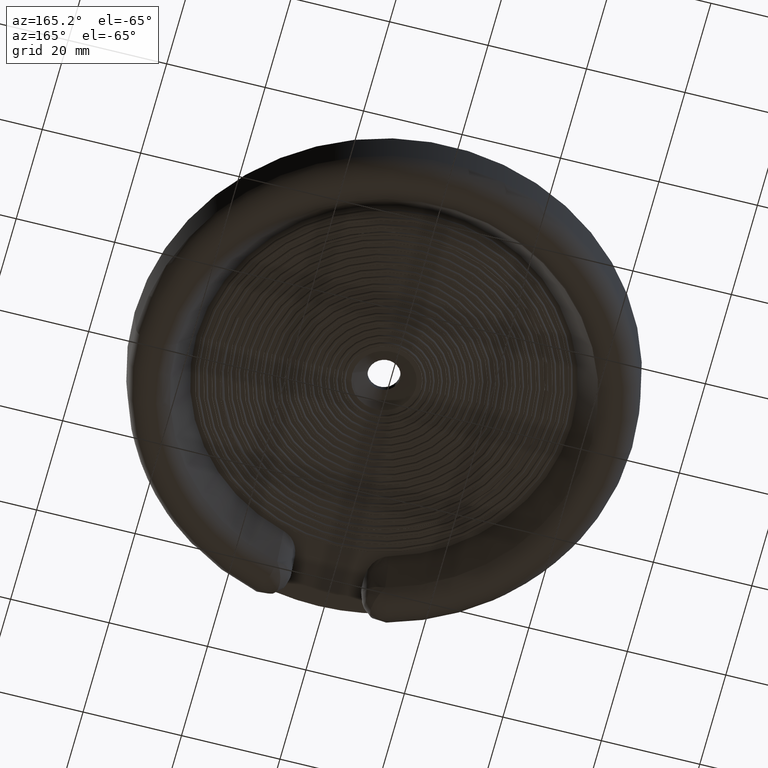
[diagram: clean part render]
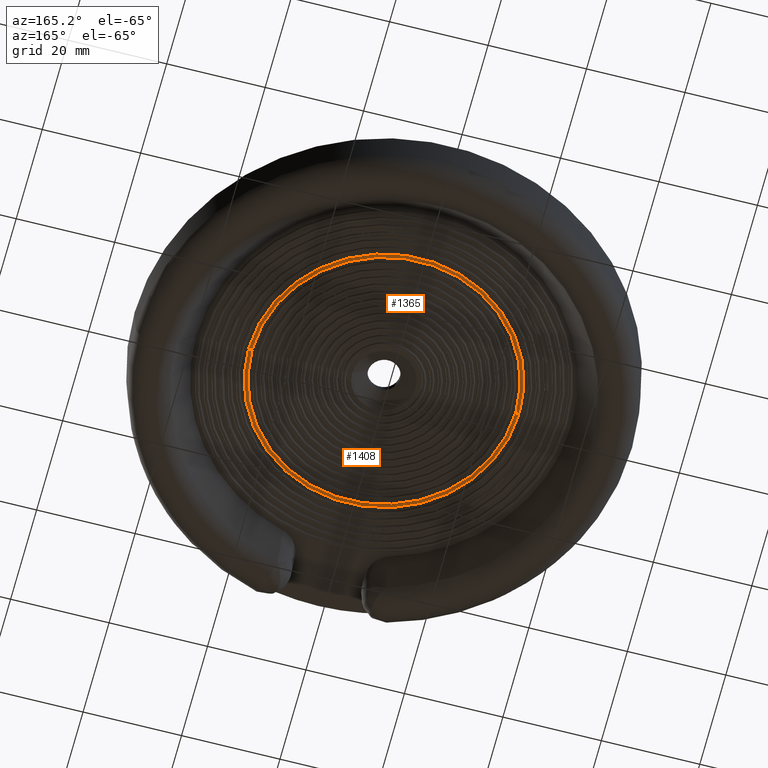
[diagram: same view with one multi-face feature highlighted, each face labeled with its STEP entity id]
A machine part, auxiliary view. The highlighted faces form ONE feature: a constant-radius fillet chain: 2 tangent blend faces with common blend radius 0.381 mm. The faces share edges in the B-rep.
Their STEP definitions:
[1] entity #1365 (Torus):
#493 = ORIENTED_EDGE ( 'NONE', *, *, #2057, .F. ) ;
#494 = ORIENTED_EDGE ( 'NONE', *, *, #2060, .T. ) ;
#495 = ORIENTED_EDGE ( 'NONE', *, *, #2061, .T. ) ;
#708 = VERTEX_POINT ( 'NONE', #2203 ) ;
#709 = VERTEX_POINT ( 'NONE', #2204 ) ;
#712 = VERTEX_POINT ( 'NONE', #2207 ) ;
#713 = VERTEX_POINT ( 'NONE', #2208 ) ;
#1091 = FACE_OUTER_BOUND ( 'NONE', #5866, .T. ) ;
#1095 = TOROIDAL_SURFACE ( 'NONE', #1866, 1.068500000000000000, 0.01499999999999999900 ) ;
#1365 = ADVANCED_FACE ( 'NONE', ( #1091 ), #1095, .T. ) ;
#1866 = AXIS2_PLACEMENT_3D ( 'NONE', #4453, #4449, #4456 ) ;
#1976 = AXIS2_PLACEMENT_3D ( 'NONE', #5228, #5230, #5231 ) ;
#1977 = AXIS2_PLACEMENT_3D ( 'NONE', #5241, #5243, #5244 ) ;
#1978 = AXIS2_PLACEMENT_3D ( 'NONE', #5238, #5239, #5240 ) ;
#1980 = AXIS2_PLACEMENT_3D ( 'NONE', #5232, #5246, #5247 ) ;
#2057 = EDGE_CURVE ( 'NONE', #708, #709, #4092, .T. ) ;
#2060 = EDGE_CURVE ( 'NONE', #713, #709, #4095, .T. ) ;
#2061 = EDGE_CURVE ( 'NONE', #712, #713, #4097, .T. ) ;
#2062 = EDGE_CURVE ( 'NONE', #712, #708, #4099, .T. ) ;
#2203 = CARTESIAN_POINT ( 'NONE',  ( 1.082988887394336300, 8.801385009193621000E-015, -0.3163822856765480300 ) ) ;
#2204 = CARTESIAN_POINT ( 'NONE',  ( -1.082988887394336300, 8.813776976819747500E-015, -0.3163822856765480300 ) ) ;
#2207 = CARTESIAN_POINT ( 'NONE',  ( 1.054011112605663300, 8.928855553086810100E-015, -0.3163822856765480300 ) ) ;
#2208 = CARTESIAN_POINT ( 'NONE',  ( -1.054011112605663300, 8.682757679012423000E-015, -0.3163822856765480300 ) ) ;
#3253 = ORIENTED_EDGE ( 'NONE', *, *, #2062, .F. ) ;
#4092 = CIRCLE ( 'NONE', #1976, 1.082988887394336300 ) ;
#4095 = CIRCLE ( 'NONE', #1978, 0.01500000000000001200 ) ;
#4097 = CIRCLE ( 'NONE', #1977, 1.054011112605663300 ) ;
#4099 = CIRCLE ( 'NONE', #1980, 0.01499999999999997700 ) ;
#4449 = DIRECTION ( 'NONE',  ( 0.0000000000000000000, 1.665334536937734100E-016, 1.000000000000000000 ) ) ;
#4453 = CARTESIAN_POINT ( 'NONE',  ( 0.0000000000000000000, 8.741913579725642300E-015, -0.3125000000000103800 ) ) ;
#4456 = DIRECTION ( 'NONE',  ( 1.000000000000000000, 5.551115123125752500E-017, -1.399612617601340200E-032 ) ) ;
#5228 = CARTESIAN_POINT ( 'NONE',  ( 0.0000000000000000000, 6.556435184794231700E-015, -0.3163822856765480300 ) ) ;
#5230 = DIRECTION ( 'NONE',  ( 0.0000000000000000000, 1.665334536937734100E-016, 1.000000000000000000 ) ) ;
#5231 = DIRECTION ( 'NONE',  ( 1.000000000000000000, 5.551115123125772200E-017, 6.306269679823470400E-017 ) ) ;
#5232 = CARTESIAN_POINT ( 'NONE',  ( 1.068499999999999800, 8.801227244816241300E-015, -0.3125000000000103300 ) ) ;
#5238 = CARTESIAN_POINT ( 'NONE',  ( -1.068499999999999800, 8.813453425123937800E-015, -0.3125000000000104400 ) ) ;
#5239 = DIRECTION ( 'NONE',  ( 6.695352868347754300E-017, 1.000000000000000000, -1.665334536937734100E-016 ) ) ;
#5240 = DIRECTION ( 'NONE',  ( 0.0000000000000000000, 1.665334536937579500E-016, 1.000000000000000000 ) ) ;
#5241 = CARTESIAN_POINT ( 'NONE',  ( 0.0000000000000000000, 6.556435184794231700E-015, -0.3163822856765480300 ) ) ;
#5243 = DIRECTION ( 'NONE',  ( 0.0000000000000000000, 1.665334536937734100E-016, 1.000000000000000000 ) ) ;
#5244 = DIRECTION ( 'NONE',  ( 1.000000000000000000, 5.551115123125747600E-017, 6.479647038328542100E-017 ) ) ;
#5246 = DIRECTION ( 'NONE',  ( 5.551115123125782700E-017, -1.000000000000000000, 1.665334536937734100E-016 ) ) ;
#5247 = DIRECTION ( 'NONE',  ( 0.0000000000000000000, -1.665334536937583200E-016, -1.000000000000000000 ) ) ;
#5866 = EDGE_LOOP ( 'NONE', ( #495, #494, #493, #3253 ) ) ;
[2] entity #1408 (Torus):
#110 = ORIENTED_EDGE ( 'NONE', *, *, #2060, .F. ) ;
#404 = AXIS2_PLACEMENT_3D ( 'NONE', #2927, #2934, #2935 ) ;
#708 = VERTEX_POINT ( 'NONE', #2203 ) ;
#709 = VERTEX_POINT ( 'NONE', #2204 ) ;
#712 = VERTEX_POINT ( 'NONE', #2207 ) ;
#713 = VERTEX_POINT ( 'NONE', #2208 ) ;
#1170 = FACE_OUTER_BOUND ( 'NONE', #2110, .T. ) ;
#1174 = TOROIDAL_SURFACE ( 'NONE', #1915, 1.068500000000000000, 0.01499999999999999900 ) ;
#1408 = ADVANCED_FACE ( 'NONE', ( #1170 ), #1174, .T. ) ;
#1478 = ORIENTED_EDGE ( 'NONE', *, *, #2059, .T. ) ;
#1915 = AXIS2_PLACEMENT_3D ( 'NONE', #5026, #5022, #5029 ) ;
#1975 = AXIS2_PLACEMENT_3D ( 'NONE', #5235, #5236, #5237 ) ;
#1978 = AXIS2_PLACEMENT_3D ( 'NONE', #5238, #5239, #5240 ) ;
#1980 = AXIS2_PLACEMENT_3D ( 'NONE', #5232, #5246, #5247 ) ;
#2059 = EDGE_CURVE ( 'NONE', #713, #712, #4094, .T. ) ;
#2060 = EDGE_CURVE ( 'NONE', #713, #709, #4095, .T. ) ;
#2062 = EDGE_CURVE ( 'NONE', #712, #708, #4099, .T. ) ;
#2110 = EDGE_LOOP ( 'NONE', ( #110, #1478, #4021, #4020 ) ) ;
#2203 = CARTESIAN_POINT ( 'NONE',  ( 1.082988887394336300, 8.801385009193621000E-015, -0.3163822856765480300 ) ) ;
#2204 = CARTESIAN_POINT ( 'NONE',  ( -1.082988887394336300, 8.813776976819747500E-015, -0.3163822856765480300 ) ) ;
#2207 = CARTESIAN_POINT ( 'NONE',  ( 1.054011112605663300, 8.928855553086810100E-015, -0.3163822856765480300 ) ) ;
#2208 = CARTESIAN_POINT ( 'NONE',  ( -1.054011112605663300, 8.682757679012423000E-015, -0.3163822856765480300 ) ) ;
#2927 = CARTESIAN_POINT ( 'NONE',  ( 0.0000000000000000000, 6.556435184794231700E-015, -0.3163822856765480300 ) ) ;
#2934 = DIRECTION ( 'NONE',  ( 0.0000000000000000000, 1.665334536937734100E-016, 1.000000000000000000 ) ) ;
#2935 = DIRECTION ( 'NONE',  ( 1.000000000000000000, 5.551115123125772200E-017, 6.306269679823470400E-017 ) ) ;
#3500 = CIRCLE ( 'NONE', #404, 1.082988887394336300 ) ;
#4020 = ORIENTED_EDGE ( 'NONE', *, *, #4238, .F. ) ;
#4021 = ORIENTED_EDGE ( 'NONE', *, *, #2062, .T. ) ;
#4094 = CIRCLE ( 'NONE', #1975, 1.054011112605663300 ) ;
#4095 = CIRCLE ( 'NONE', #1978, 0.01500000000000001200 ) ;
#4099 = CIRCLE ( 'NONE', #1980, 0.01499999999999997700 ) ;
#4238 = EDGE_CURVE ( 'NONE', #709, #708, #3500, .T. ) ;
#5022 = DIRECTION ( 'NONE',  ( 0.0000000000000000000, 1.665334536937734100E-016, 1.000000000000000000 ) ) ;
#5026 = CARTESIAN_POINT ( 'NONE',  ( 0.0000000000000000000, 8.741913579725642300E-015, -0.3125000000000103800 ) ) ;
#5029 = DIRECTION ( 'NONE',  ( 1.000000000000000000, 5.551115123125752500E-017, -1.399612617601340200E-032 ) ) ;
#5232 = CARTESIAN_POINT ( 'NONE',  ( 1.068499999999999800, 8.801227244816241300E-015, -0.3125000000000103300 ) ) ;
#5235 = CARTESIAN_POINT ( 'NONE',  ( 0.0000000000000000000, 6.556435184794231700E-015, -0.3163822856765480300 ) ) ;
#5236 = DIRECTION ( 'NONE',  ( 0.0000000000000000000, 1.665334536937734100E-016, 1.000000000000000000 ) ) ;
#5237 = DIRECTION ( 'NONE',  ( 1.000000000000000000, 5.551115123125747600E-017, 6.479647038328542100E-017 ) ) ;
#5238 = CARTESIAN_POINT ( 'NONE',  ( -1.068499999999999800, 8.813453425123937800E-015, -0.3125000000000104400 ) ) ;
#5239 = DIRECTION ( 'NONE',  ( 6.695352868347754300E-017, 1.000000000000000000, -1.665334536937734100E-016 ) ) ;
#5240 = DIRECTION ( 'NONE',  ( 0.0000000000000000000, 1.665334536937579500E-016, 1.000000000000000000 ) ) ;
#5246 = DIRECTION ( 'NONE',  ( 5.551115123125782700E-017, -1.000000000000000000, 1.665334536937734100E-016 ) ) ;
#5247 = DIRECTION ( 'NONE',  ( 0.0000000000000000000, -1.665334536937583200E-016, -1.000000000000000000 ) ) ;